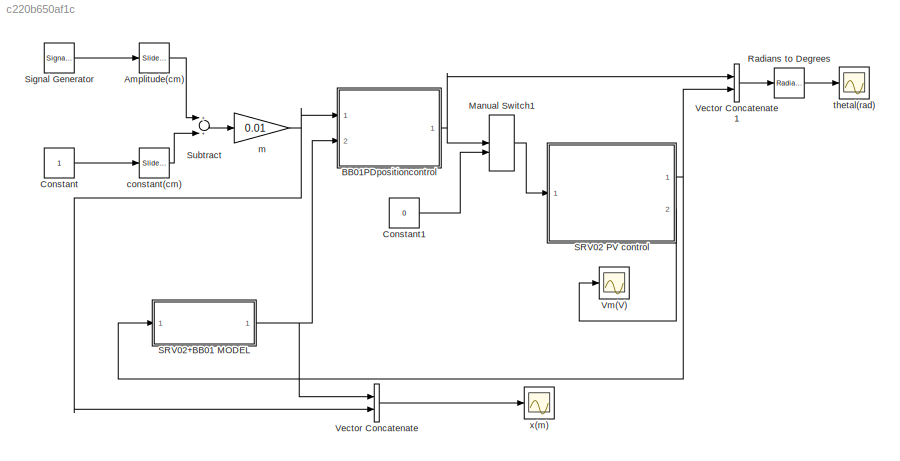
MODEL slx_c220b650af1c
KIND model
CONFIG AbsTol = auto
CONFIG FixedStep = 0.002
CONFIG MaxStep = auto
CONFIG MinStep = auto
CONFIG RelTol = 1e-3
CONFIG SampleTimeConstraint = Unconstrained
CONFIG Solver = ode1
CONFIG SolverMode = Auto
CONFIG SolverName = ode1
CONFIG StartTime = 0.0
CONFIG StopTime = 25
BLOCK [Reference] Amplitude(cm)  REF=simulink/Math
Operations/Slider
Gain
  Ports = [1, 1]
  SourceBlock = simulink/Math\nOperations/Slider\nGain
  SourceType = Slider Gain
  gain = 5
  high = 10
  low = -1
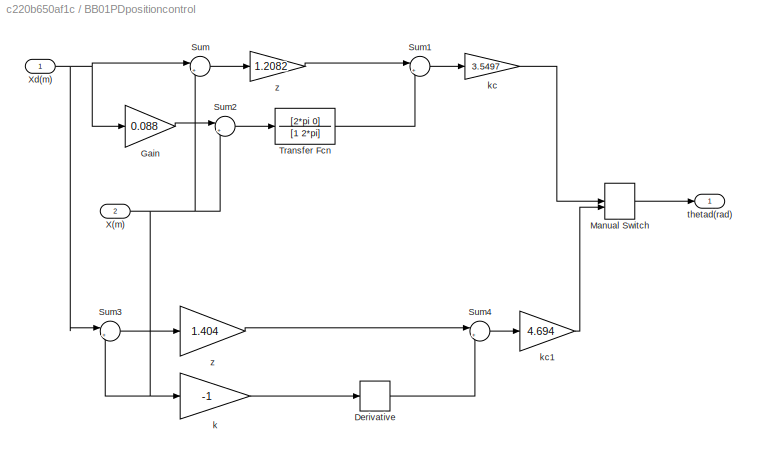
BLOCK [SubSystem] BB01PDpositioncontrol
  Ports = [2, 1]
  RequestExecContextInheritance = off
BLOCK [Derivative] BB01PDpositioncontrol/Derivative
BLOCK [Gain] BB01PDpositioncontrol/Gain
  Gain = 0.088
  OutDataTypeStr = Inherit: Inherit via internal rule
  ParamDataTypeStr = Inherit: Inherit via internal rule
  SaturateOnIntegerOverflow = off
BLOCK [ManualSwitch] BB01PDpositioncontrol/Manual Switch
BLOCK [Sum] BB01PDpositioncontrol/Sum
  IconShape = round
  InputSameDT = off
  Inputs = |+-
  OutDataTypeStr = Inherit: Inherit via internal rule
  Ports = [2, 1]
  SaturateOnIntegerOverflow = off
BLOCK [Sum] BB01PDpositioncontrol/Sum1
  IconShape = round
  InputSameDT = off
  Inputs = |++
  OutDataTypeStr = Inherit: Inherit via internal rule
  Ports = [2, 1]
  SaturateOnIntegerOverflow = off
BLOCK [Sum] BB01PDpositioncontrol/Sum2
  IconShape = round
  InputSameDT = off
  Inputs = |+-
  OutDataTypeStr = Inherit: Inherit via internal rule
  Ports = [2, 1]
  SaturateOnIntegerOverflow = off
BLOCK [Sum] BB01PDpositioncontrol/Sum3
  IconShape = round
  InputSameDT = off
  Inputs = |+-
  OutDataTypeStr = Inherit: Inherit via internal rule
  Ports = [2, 1]
  SaturateOnIntegerOverflow = off
BLOCK [Sum] BB01PDpositioncontrol/Sum4
  IconShape = round
  InputSameDT = off
  Inputs = |++
  OutDataTypeStr = Inherit: Inherit via internal rule
  Ports = [2, 1]
  SaturateOnIntegerOverflow = off
BLOCK [TransferFcn] BB01PDpositioncontrol/Transfer Fcn
  Denominator = [1 2*pi]
  Numerator = [2*pi 0]
BLOCK [Inport] BB01PDpositioncontrol/X(m)
  IconDisplay = Port number
  Port = 2
BLOCK [Inport] BB01PDpositioncontrol/Xd(m)
  IconDisplay = Port number
BLOCK [Gain] BB01PDpositioncontrol/k
  Gain = -1
  OutDataTypeStr = Inherit: Inherit via internal rule
  ParamDataTypeStr = Inherit: Inherit via internal rule
  SaturateOnIntegerOverflow = off
BLOCK [Gain] BB01PDpositioncontrol/kc
  Gain = 3.5497
  OutDataTypeStr = Inherit: Inherit via internal rule
  ParamDataTypeStr = Inherit: Inherit via internal rule
  SaturateOnIntegerOverflow = off
BLOCK [Gain] BB01PDpositioncontrol/kc1
  Gain = 4.694
  OutDataTypeStr = Inherit: Inherit via internal rule
  ParamDataTypeStr = Inherit: Inherit via internal rule
  SaturateOnIntegerOverflow = off
BLOCK [Outport] BB01PDpositioncontrol/thetad(rad)
  IconDisplay = Port number
BLOCK [Gain] BB01PDpositioncontrol/z
  Gain = 1.404
  OutDataTypeStr = Inherit: Inherit via internal rule
  ParamDataTypeStr = Inherit: Inherit via internal rule
  SaturateOnIntegerOverflow = off
BLOCK [Gain] BB01PDpositioncontrol/z 
  Gain = 1.2082
  OutDataTypeStr = Inherit: Inherit via internal rule
  ParamDataTypeStr = Inherit: Inherit via internal rule
  SaturateOnIntegerOverflow = off
BLOCK [Constant] Constant
BLOCK [Constant] Constant1
  Value = 0
BLOCK [ManualSwitch] Manual Switch1
BLOCK [Reference] Radians to Degrees  REF=simulink_extras/Transformations/Radians
to Degrees
  Ports = [1, 1]
  SourceBlock = simulink_extras/Transformations/Radians\nto Degrees
  SourceType = RadiansToDegrees
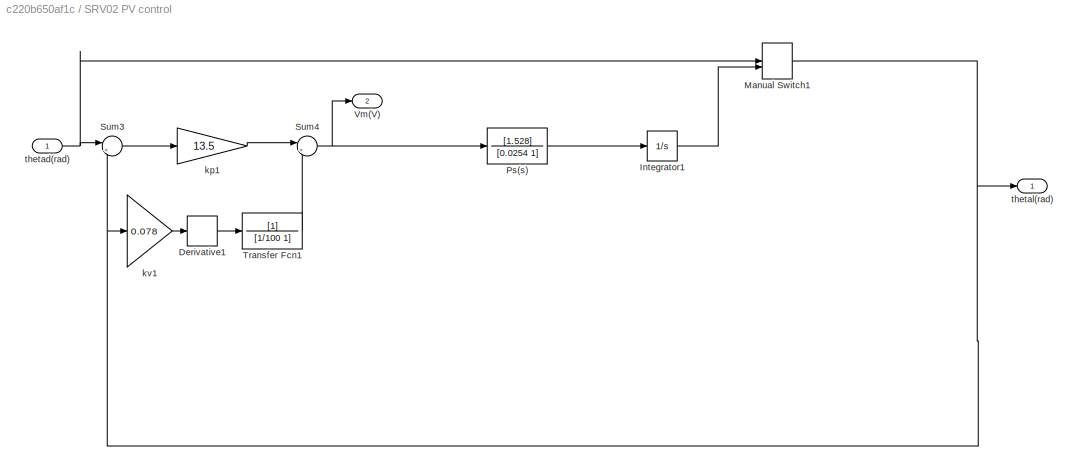
BLOCK [SubSystem] SRV02 PV control
  Ports = [1, 2]
  RequestExecContextInheritance = off
BLOCK [Derivative] SRV02 PV control/Derivative1
BLOCK [Integrator] SRV02 PV control/Integrator1
  Ports = [1, 1]
BLOCK [ManualSwitch] SRV02 PV control/Manual Switch1
  CurrentSetting = 0
BLOCK [TransferFcn] SRV02 PV control/Ps(s)
  Denominator = [0.0254 1]
  Numerator = [1.528]
BLOCK [Sum] SRV02 PV control/Sum3
  IconShape = round
  InputSameDT = off
  Inputs = |+-
  OutDataTypeStr = Inherit: Inherit via internal rule
  Ports = [2, 1]
  SaturateOnIntegerOverflow = off
BLOCK [Sum] SRV02 PV control/Sum4
  IconShape = round
  InputSameDT = off
  Inputs = |++
  OutDataTypeStr = Inherit: Inherit via internal rule
  Ports = [2, 1]
  SaturateOnIntegerOverflow = off
BLOCK [TransferFcn] SRV02 PV control/Transfer Fcn1
  Denominator = [1/100 1]
BLOCK [Outport] SRV02 PV control/Vm(V) 
  IconDisplay = Port number
  Port = 2
BLOCK [Gain] SRV02 PV control/kp1
  Gain = 13.5
  OutDataTypeStr = Inherit: Inherit via internal rule
  ParamDataTypeStr = Inherit: Inherit via internal rule
  SaturateOnIntegerOverflow = off
BLOCK [Gain] SRV02 PV control/kv1
  Gain = 0.078
  OutDataTypeStr = Inherit: Inherit via internal rule
  ParamDataTypeStr = Inherit: Inherit via internal rule
  SaturateOnIntegerOverflow = off
BLOCK [Inport] SRV02 PV control/thetad(rad)
  IconDisplay = Port number
BLOCK [Outport] SRV02 PV control/thetal(rad)
  IconDisplay = Port number
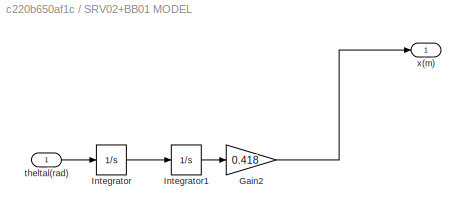
BLOCK [SubSystem] SRV02+BB01 MODEL
  Ports = [1, 1]
  RequestExecContextInheritance = off
BLOCK [Gain] SRV02+BB01 MODEL/Gain2
  Gain = 0.418
  OutDataTypeStr = Inherit: Inherit via internal rule
  ParamDataTypeStr = Inherit: Inherit via internal rule
  SaturateOnIntegerOverflow = off
BLOCK [Integrator] SRV02+BB01 MODEL/Integrator
  Ports = [1, 1]
BLOCK [Integrator] SRV02+BB01 MODEL/Integrator1
  Ports = [1, 1]
BLOCK [Inport] SRV02+BB01 MODEL/theltal(rad)
  IconDisplay = Port number
BLOCK [Outport] SRV02+BB01 MODEL/x(m)
  IconDisplay = Port number
BLOCK [SignalGenerator] Signal Generator
  Frequency = 0.2
  Ports = [0, 1]
  Units = rad/sec
  WaveForm = square
BLOCK [Sum] Subtract
  InputSameDT = off
  OutDataTypeStr = Inherit: Inherit via internal rule
  Ports = [2, 1]
  SaturateOnIntegerOverflow = off
BLOCK [Concatenate] Vector Concatenate
  Ports = [2, 1]
BLOCK [Concatenate] Vector Concatenate1
  Ports = [2, 1]
BLOCK [Scope] Vm(V) 
  Floating = off
  LimitDataPoints = off
  NumInputPorts = 1
  Ports = [1]
  SaveName = ScopeData2
  SaveToWorkspace = on
  ZoomMode = xonly
BLOCK [Reference] constant(cm)  REF=simulink/Math
Operations/Slider
Gain
  Ports = [1, 1]
  SourceBlock = simulink/Math\nOperations/Slider\nGain
  SourceType = Slider Gain
  gain = 0
  high = 5
  low = 0
BLOCK [Gain] m 
  Gain = 0.01
  OutDataTypeStr = Inherit: Inherit via internal rule
  ParamDataTypeStr = Inherit: Inherit via internal rule
  SaturateOnIntegerOverflow = off
BLOCK [Scope] thetal(rad)
  DataFormat = StructureWithTime
  Floating = off
  LimitDataPoints = off
  NumInputPorts = 1
  Ports = [1]
  SaveName = ScopeData1
  SaveToWorkspace = on
  TimeRange = 25
  YMax = 125
  YMin = -125
BLOCK [Scope] x(m)
  DataFormat = StructureWithTime
  Floating = off
  LimitDataPoints = off
  NumInputPorts = 1
  Ports = [1]
  SaveToWorkspace = on
  YMax = 0.14
  YMin = -0.09
LINE Amplitude(cm):1 -> Subtract:1
LINE BB01PDpositioncontrol/Derivative:1 -> BB01PDpositioncontrol/Sum4:2
LINE BB01PDpositioncontrol/Gain:1 -> BB01PDpositioncontrol/Sum2:1
LINE BB01PDpositioncontrol/Manual Switch:1 -> BB01PDpositioncontrol/thetad(rad):1
LINE BB01PDpositioncontrol/Sum1:1 -> BB01PDpositioncontrol/kc:1
LINE BB01PDpositioncontrol/Sum2:1 -> BB01PDpositioncontrol/Transfer Fcn:1
LINE BB01PDpositioncontrol/Sum3:1 -> BB01PDpositioncontrol/z:1
LINE BB01PDpositioncontrol/Sum4:1 -> BB01PDpositioncontrol/kc1:1
LINE BB01PDpositioncontrol/Sum:1 -> BB01PDpositioncontrol/z :1
LINE BB01PDpositioncontrol/Transfer Fcn:1 -> BB01PDpositioncontrol/Sum1:2
NET BB01PDpositioncontrol/X(m):1 -> BB01PDpositioncontrol/Sum2:2, BB01PDpositioncontrol/Sum3:2, BB01PDpositioncontrol/Sum:2, BB01PDpositioncontrol/k:1
NET BB01PDpositioncontrol/Xd(m):1 -> BB01PDpositioncontrol/Gain:1, BB01PDpositioncontrol/Sum3:1, BB01PDpositioncontrol/Sum:1
LINE BB01PDpositioncontrol/k:1 -> BB01PDpositioncontrol/Derivative:1
LINE BB01PDpositioncontrol/kc1:1 -> BB01PDpositioncontrol/Manual Switch:2
LINE BB01PDpositioncontrol/kc:1 -> BB01PDpositioncontrol/Manual Switch:1
LINE BB01PDpositioncontrol/z :1 -> BB01PDpositioncontrol/Sum1:1
LINE BB01PDpositioncontrol/z:1 -> BB01PDpositioncontrol/Sum4:1
NET BB01PDpositioncontrol:1 -> Manual Switch1:1, Vector Concatenate1:1
LINE Constant1:1 -> Manual Switch1:2
LINE Constant:1 -> constant(cm):1
LINE Manual Switch1:1 -> SRV02 PV control:1
LINE Radians to Degrees:1 -> thetal(rad):1
LINE SRV02 PV control/Derivative1:1 -> SRV02 PV control/Transfer Fcn1:1
LINE SRV02 PV control/Integrator1:1 -> SRV02 PV control/Manual Switch1:2
NET SRV02 PV control/Manual Switch1:1 -> SRV02 PV control/Sum3:2, SRV02 PV control/kv1:1, SRV02 PV control/thetal(rad):1
LINE SRV02 PV control/Ps(s):1 -> SRV02 PV control/Integrator1:1
LINE SRV02 PV control/Sum3:1 -> SRV02 PV control/kp1:1
NET SRV02 PV control/Sum4:1 -> SRV02 PV control/Ps(s):1, SRV02 PV control/Vm(V) :1
LINE SRV02 PV control/Transfer Fcn1:1 -> SRV02 PV control/Sum4:2
LINE SRV02 PV control/kp1:1 -> SRV02 PV control/Sum4:1
LINE SRV02 PV control/kv1:1 -> SRV02 PV control/Derivative1:1
NET SRV02 PV control/thetad(rad):1 -> SRV02 PV control/Manual Switch1:1, SRV02 PV control/Sum3:1
NET SRV02 PV control:1 -> SRV02+BB01 MODEL:1, Vector Concatenate1:2
LINE SRV02 PV control:2 -> Vm(V) :1
LINE SRV02+BB01 MODEL/Gain2:1 -> SRV02+BB01 MODEL/x(m):1
LINE SRV02+BB01 MODEL/Integrator1:1 -> SRV02+BB01 MODEL/Gain2:1
LINE SRV02+BB01 MODEL/Integrator:1 -> SRV02+BB01 MODEL/Integrator1:1
LINE SRV02+BB01 MODEL/theltal(rad):1 -> SRV02+BB01 MODEL/Integrator:1
NET SRV02+BB01 MODEL:1 -> BB01PDpositioncontrol:2, Vector Concatenate:1
LINE Signal Generator:1 -> Amplitude(cm):1
LINE Subtract:1 -> m :1
LINE Vector Concatenate1:1 -> Radians to Degrees:1
LINE Vector Concatenate:1 -> x(m):1
LINE constant(cm):1 -> Subtract:2
NET m :1 -> BB01PDpositioncontrol:1, Vector Concatenate:2
note: NET lines group one-source signal fan-out (src -> all destinations, sorted); 1:1 wires keep LINE
